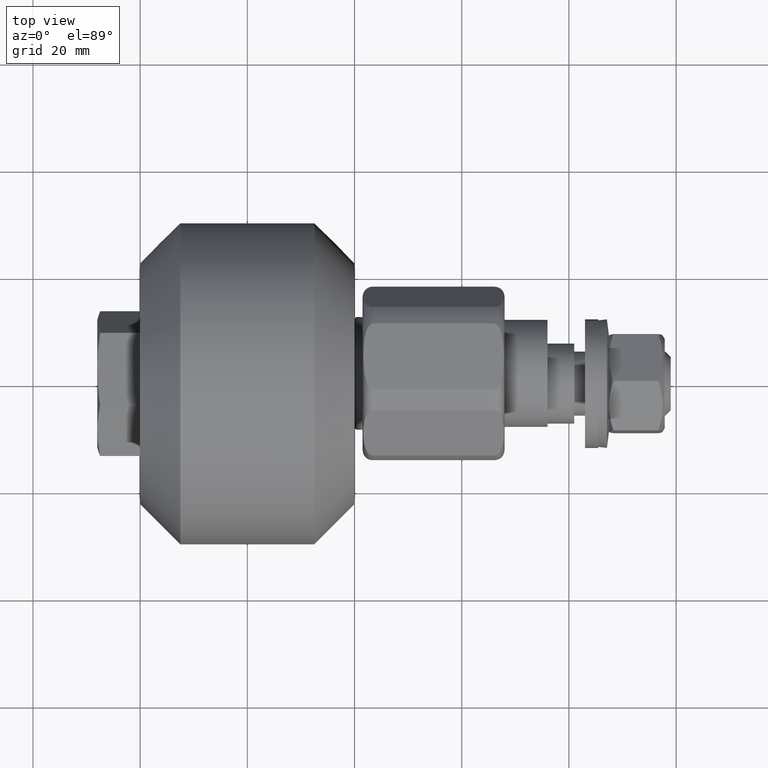
[diagram: clean part render]
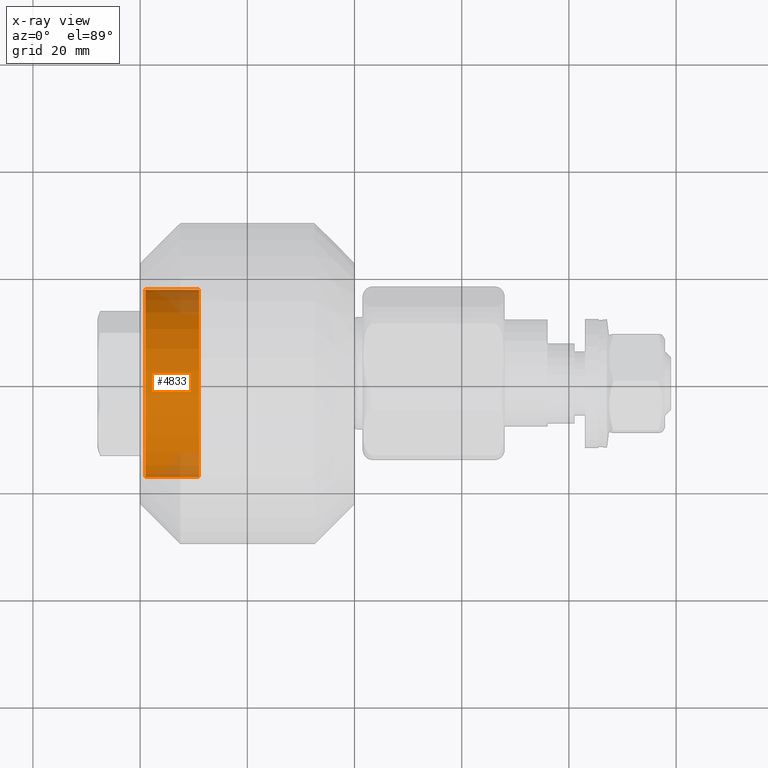
[diagram: x-ray — body ghosted, one internal face saturated and labeled with its STEP entity id]
A machine part, top view, then the same camera in x-ray: the body is ghosted and one INTERNAL B-rep face — a face not visible from any outside direction — is saturated and labeled: STEP entity #4833.
In plain terms, the highlighted cylindrical surface (bore or boss wall) has radius 17.5 mm, axis along (1, 0, 0).
Its self-contained STEP definition (entity closure, byte-faithful):
#316=CYLINDRICAL_SURFACE('',#5309,17.5);
#577=FACE_OUTER_BOUND('',#849,.T.);
#849=EDGE_LOOP('',(#3288,#3289,#3290,#3291,#3292));
#1152=LINE('',#7296,#1442);
#1442=VECTOR('',#5885,17.5);
#1732=CIRCLE('',#5305,17.5);
#1733=CIRCLE('',#5306,17.5);
#1735=CIRCLE('',#5310,17.5);
#1999=VERTEX_POINT('',#7285);
#2000=VERTEX_POINT('',#7287);
#2002=VERTEX_POINT('',#7294);
#2517=EDGE_CURVE('',#1999,#2000,#1732,.T.);
#2518=EDGE_CURVE('',#2000,#1999,#1733,.T.);
#2520=EDGE_CURVE('',#2002,#2002,#1735,.T.);
#2521=EDGE_CURVE('',#2002,#2000,#1152,.T.);
#3288=ORIENTED_EDGE('',*,*,#2520,.T.);
#3289=ORIENTED_EDGE('',*,*,#2521,.T.);
#3290=ORIENTED_EDGE('',*,*,#2517,.F.);
#3291=ORIENTED_EDGE('',*,*,#2518,.F.);
#3292=ORIENTED_EDGE('',*,*,#2521,.F.);
#4833=ADVANCED_FACE('',(#577),#316,.F.);
#5305=AXIS2_PLACEMENT_3D('',#7288,#5873,#5874);
#5306=AXIS2_PLACEMENT_3D('',#7289,#5875,#5876);
#5309=AXIS2_PLACEMENT_3D('',#7293,#5881,#5882);
#5310=AXIS2_PLACEMENT_3D('',#7295,#5883,#5884);
#5873=DIRECTION('center_axis',(1.,0.,0.));
#5874=DIRECTION('ref_axis',(0.,-1.,0.));
#5875=DIRECTION('center_axis',(1.,0.,0.));
#5876=DIRECTION('ref_axis',(0.,-1.,0.));
#5881=DIRECTION('center_axis',(1.,0.,0.));
#5882=DIRECTION('ref_axis',(0.,1.,0.));
#5883=DIRECTION('center_axis',(1.,0.,0.));
#5884=DIRECTION('ref_axis',(0.,1.,0.));
#5885=DIRECTION('',(-1.,0.,0.));
#7285=CARTESIAN_POINT('',(-19.,17.5,2.14313189850787E-15));
#7287=CARTESIAN_POINT('',(-19.,-17.5,-2.14313189850787E-15));
#7288=CARTESIAN_POINT('Origin',(-19.,0.,0.));
#7289=CARTESIAN_POINT('Origin',(-19.,0.,0.));
#7293=CARTESIAN_POINT('Origin',(-14.5,0.,0.));
#7294=CARTESIAN_POINT('',(-9.,-17.5,-2.14313189850787E-15));
#7295=CARTESIAN_POINT('Origin',(-9.,0.,0.));
#7296=CARTESIAN_POINT('',(-14.5,-17.5,-2.14313189850787E-15));